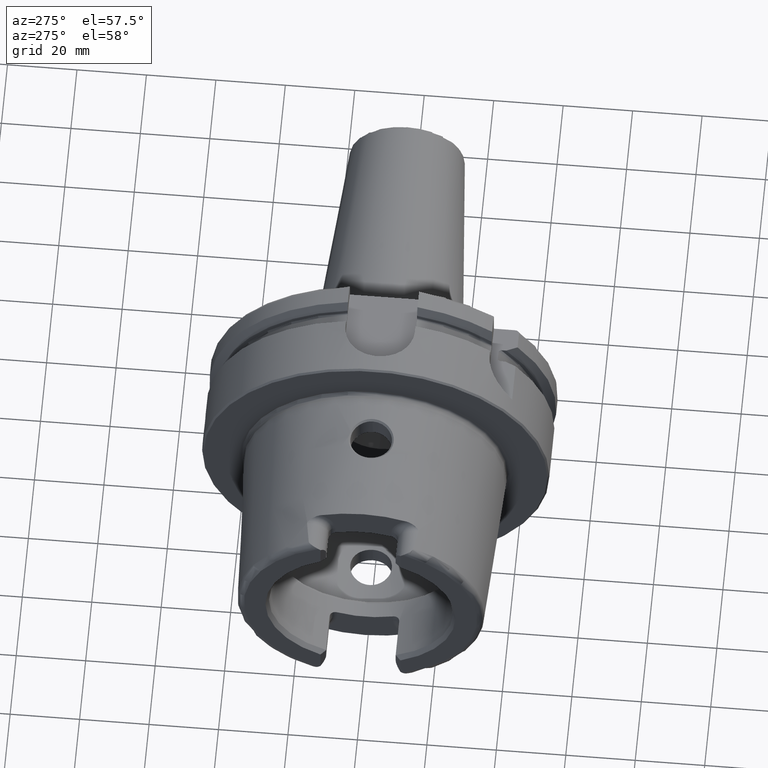
[diagram: clean part render]
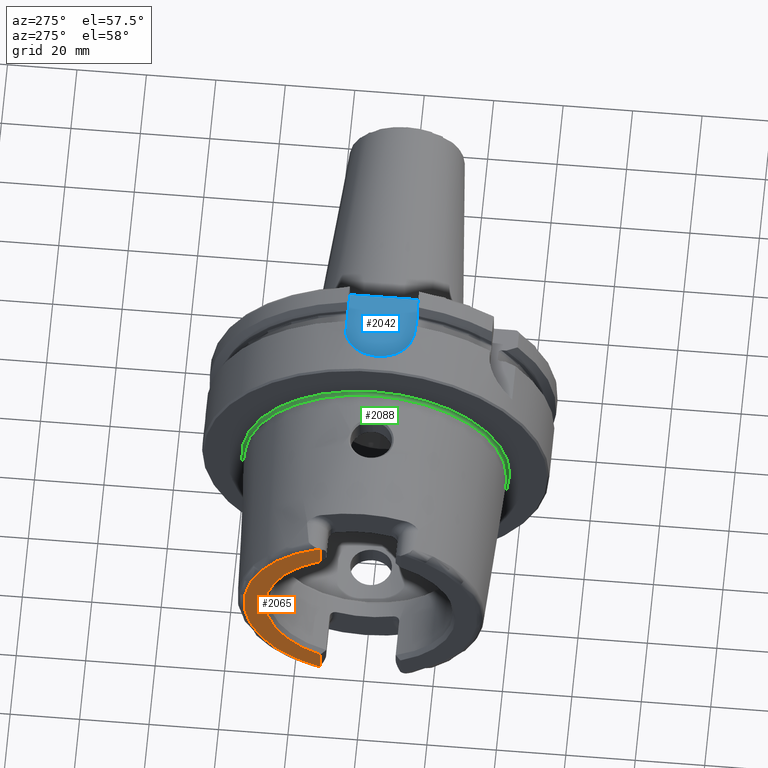
[diagram: same view with three faces highlighted in distinct colors, each labeled with its STEP entity id]
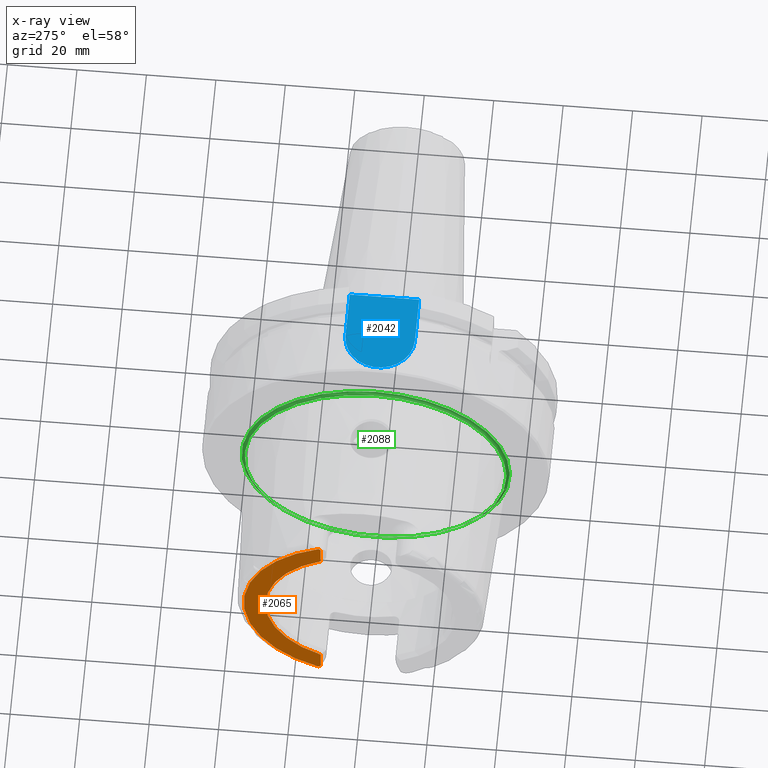
[diagram: x-ray of the same camera — body ghosted, the three highlighted faces saturated]
A machine part, auxiliary view with three faces highlighted in distinct colors.
The next image is the same camera in x-ray (body ghosted, the three faces saturated) — at least one of them is partly hidden behind the body in this view.
Their STEP definitions:

[orange] entity #2065 — the highlighted planar face has unit normal (-1, 0, 0).
#129=PLANE('',#2317);
#303=FACE_OUTER_BOUND('',#431,.T.);
#431=EDGE_LOOP('',(#1849,#1850,#1851,#1852,#1853,#1854));
#479=LINE('',#3095,#586);
#491=LINE('',#3206,#598);
#586=VECTOR('',#2481,10.);
#598=VECTOR('',#2541,10.);
#696=CIRCLE('',#2159,4.88);
#707=CIRCLE('',#2184,4.88);
#771=CIRCLE('',#2309,27.3660254037844);
#772=CIRCLE('',#2313,33.6001839277785);
#836=VERTEX_POINT('',#3088);
#839=VERTEX_POINT('',#3093);
#842=VERTEX_POINT('',#3103);
#863=VERTEX_POINT('',#3203);
#864=VERTEX_POINT('',#3205);
#869=VERTEX_POINT('',#3224);
#1055=EDGE_CURVE('',#839,#836,#479,.T.);
#1059=EDGE_CURVE('',#842,#836,#696,.T.);
#1086=EDGE_CURVE('',#863,#864,#491,.T.);
#1093=EDGE_CURVE('',#863,#869,#707,.T.);
#1281=EDGE_CURVE('',#864,#839,#771,.T.);
#1283=EDGE_CURVE('',#842,#869,#772,.T.);
#1849=ORIENTED_EDGE('',*,*,#1055,.F.);
#1850=ORIENTED_EDGE('',*,*,#1281,.F.);
#1851=ORIENTED_EDGE('',*,*,#1086,.F.);
#1852=ORIENTED_EDGE('',*,*,#1093,.T.);
#1853=ORIENTED_EDGE('',*,*,#1283,.F.);
#1854=ORIENTED_EDGE('',*,*,#1059,.T.);
#2065=ADVANCED_FACE('',(#303),#129,.T.);
#2159=AXIS2_PLACEMENT_3D('',#3104,#2489,#2490);
#2184=AXIS2_PLACEMENT_3D('',#3237,#2550,#2551);
#2309=AXIS2_PLACEMENT_3D('',#4420,#2862,#2863);
#2313=AXIS2_PLACEMENT_3D('',#4425,#2871,#2872);
#2317=AXIS2_PLACEMENT_3D('',#4432,#2880,#2881);
#2481=DIRECTION('',(0.,0.,-1.));
#2489=DIRECTION('center_axis',(-1.,0.,0.));
#2490=DIRECTION('ref_axis',(0.,-0.477884921181368,0.878422450821629));
#2541=DIRECTION('',(0.,0.,-1.));
#2550=DIRECTION('center_axis',(-1.,0.,0.));
#2551=DIRECTION('ref_axis',(0.,1.,0.));
#2862=DIRECTION('center_axis',(-1.,0.,0.));
#2863=DIRECTION('ref_axis',(0.,-1.,0.));
#2871=DIRECTION('center_axis',(1.,0.,0.));
#2872=DIRECTION('ref_axis',(0.,0.,-1.));
#2880=DIRECTION('center_axis',(-1.,0.,0.));
#2881=DIRECTION('ref_axis',(0.,0.,1.));
#3088=CARTESIAN_POINT('',(-50.,11.51,-30.8899431813596));
#3093=CARTESIAN_POINT('',(-50.,11.51,-24.8277918148307));
#3095=CARTESIAN_POINT('',(-50.,11.51,-10.));
#3103=CARTESIAN_POINT('',(-50.,12.0743049948301,-31.355757348091));
#3104=CARTESIAN_POINT('Origin',(-50.,14.89,-27.37));
#3203=CARTESIAN_POINT('',(-50.,11.51,30.8899431813596));
#3205=CARTESIAN_POINT('',(-50.,11.51,24.8277918148307));
#3206=CARTESIAN_POINT('',(-50.,11.51,13.685));
#3224=CARTESIAN_POINT('',(-50.,12.0743049948301,31.355757348091));
#3237=CARTESIAN_POINT('Origin',(-50.,14.89,27.37));
#4420=CARTESIAN_POINT('Origin',(-50.,0.,0.));
#4425=CARTESIAN_POINT('Origin',(-50.,0.,0.));
#4432=CARTESIAN_POINT('Origin',(-50.,33.6001839277785,0.));

[blue] entity #2042 — the highlighted planar face has unit normal (0, 0, 1).
#123=PLANE('',#2273);
#280=FACE_OUTER_BOUND('',#408,.T.);
#408=EDGE_LOOP('',(#1739,#1740,#1741,#1742));
#470=LINE('',#3053,#577);
#543=LINE('',#4303,#650);
#546=LINE('',#4310,#653);
#577=VECTOR('',#2434,10.);
#650=VECTOR('',#2771,10.);
#653=VECTOR('',#2780,10.);
#753=CIRCLE('',#2271,10.);
#824=VERTEX_POINT('',#3050);
#825=VERTEX_POINT('',#3052);
#974=VERTEX_POINT('',#4302);
#975=VERTEX_POINT('',#4306);
#1035=EDGE_CURVE('',#824,#825,#470,.T.);
#1245=EDGE_CURVE('',#974,#825,#543,.T.);
#1247=EDGE_CURVE('',#975,#974,#753,.T.);
#1249=EDGE_CURVE('',#824,#975,#546,.T.);
#1739=ORIENTED_EDGE('',*,*,#1249,.T.);
#1740=ORIENTED_EDGE('',*,*,#1247,.T.);
#1741=ORIENTED_EDGE('',*,*,#1245,.T.);
#1742=ORIENTED_EDGE('',*,*,#1035,.F.);
#2042=ADVANCED_FACE('',(#280),#123,.T.);
#2271=AXIS2_PLACEMENT_3D('',#4307,#2775,#2776);
#2273=AXIS2_PLACEMENT_3D('',#4311,#2781,#2782);
#2434=DIRECTION('',(0.,-1.,0.));
#2771=DIRECTION('',(1.,7.93016446160826E-17,0.));
#2775=DIRECTION('center_axis',(0.,0.,1.));
#2776=DIRECTION('ref_axis',(0.,1.,0.));
#2780=DIRECTION('',(-1.,0.,0.));
#2781=DIRECTION('center_axis',(0.,0.,1.));
#2782=DIRECTION('ref_axis',(1.,0.,0.));
#3050=CARTESIAN_POINT('',(29.,10.,44.));
#3052=CARTESIAN_POINT('',(29.,-10.,44.));
#3053=CARTESIAN_POINT('',(29.,0.,44.));
#4302=CARTESIAN_POINT('',(15.,-10.,44.));
#4303=CARTESIAN_POINT('',(15.,-10.,44.));
#4306=CARTESIAN_POINT('',(15.,10.,44.));
#4307=CARTESIAN_POINT('Origin',(15.,0.,44.));
#4310=CARTESIAN_POINT('',(29.,10.,44.));
#4311=CARTESIAN_POINT('Origin',(17.,0.,44.));

[green] entity #2088 — the highlighted toroidal blend (fillet) surface has major radius 38.5073 mm and minor (blend) radius 0.8 mm.
#160=TOROIDAL_SURFACE('',#2367,38.5073016032064,0.8);
#326=FACE_OUTER_BOUND('',#458,.T.);
#458=EDGE_LOOP('',(#1947,#1948,#1949,#1950,#1951,#1952));
#789=CIRCLE('',#2343,38.6186400839745);
#790=CIRCLE('',#2344,38.6186400839745);
#800=CIRCLE('',#2365,37.7073016032064);
#801=CIRCLE('',#2366,37.7073016032064);
#802=CIRCLE('',#2368,0.8);
#1001=VERTEX_POINT('',#4473);
#1002=VERTEX_POINT('',#4474);
#1006=VERTEX_POINT('',#4503);
#1007=VERTEX_POINT('',#4504);
#1305=EDGE_CURVE('',#1001,#1002,#789,.T.);
#1306=EDGE_CURVE('',#1002,#1001,#790,.T.);
#1319=EDGE_CURVE('',#1006,#1007,#800,.T.);
#1321=EDGE_CURVE('',#1007,#1006,#801,.T.);
#1322=EDGE_CURVE('',#1007,#1002,#802,.T.);
#1947=ORIENTED_EDGE('',*,*,#1319,.T.);
#1948=ORIENTED_EDGE('',*,*,#1322,.T.);
#1949=ORIENTED_EDGE('',*,*,#1305,.F.);
#1950=ORIENTED_EDGE('',*,*,#1306,.F.);
#1951=ORIENTED_EDGE('',*,*,#1322,.F.);
#1952=ORIENTED_EDGE('',*,*,#1321,.T.);
#2088=ADVANCED_FACE('',(#326),#160,.F.);
#2343=AXIS2_PLACEMENT_3D('',#4475,#2936,#2937);
#2344=AXIS2_PLACEMENT_3D('',#4476,#2938,#2939);
#2365=AXIS2_PLACEMENT_3D('',#4505,#2983,#2984);
#2366=AXIS2_PLACEMENT_3D('',#4507,#2986,#2987);
#2367=AXIS2_PLACEMENT_3D('',#4508,#2988,#2989);
#2368=AXIS2_PLACEMENT_3D('',#4509,#2990,#2991);
#2936=DIRECTION('center_axis',(1.,0.,0.));
#2937=DIRECTION('ref_axis',(0.,0.,-1.));
#2938=DIRECTION('center_axis',(1.,0.,0.));
#2939=DIRECTION('ref_axis',(0.,0.,-1.));
#2983=DIRECTION('center_axis',(1.,0.,0.));
#2984=DIRECTION('ref_axis',(0.,0.,-1.));
#2986=DIRECTION('center_axis',(1.,0.,0.));
#2987=DIRECTION('ref_axis',(0.,0.,-1.));
#2988=DIRECTION('center_axis',(1.,0.,0.));
#2989=DIRECTION('ref_axis',(0.,0.,-1.));
#2990=DIRECTION('center_axis',(0.,-1.,-1.22464679914735E-16));
#2991=DIRECTION('ref_axis',(0.,-1.22464679914735E-16,1.));
#4473=CARTESIAN_POINT('',(0.0922144549932558,-38.6186400839745,-4.7294193966263E-15));
#4474=CARTESIAN_POINT('',(0.0922144549932559,-4.7294193966263E-15,38.6186400839745));
#4475=CARTESIAN_POINT('Origin',(0.0922144549932559,0.,0.));
#4476=CARTESIAN_POINT('Origin',(0.0922144549932559,0.,0.));
#4503=CARTESIAN_POINT('',(-0.7,-37.7073016032064,-4.61781262128506E-15));
#4504=CARTESIAN_POINT('',(-0.7,-4.61781262128506E-15,37.7073016032064));
#4505=CARTESIAN_POINT('Origin',(-0.7,0.,0.));
#4507=CARTESIAN_POINT('Origin',(-0.7,0.,0.));
#4508=CARTESIAN_POINT('Origin',(-0.7,0.,0.));
#4509=CARTESIAN_POINT('Origin',(-0.7,-4.71578436521685E-15,38.5073016032064));